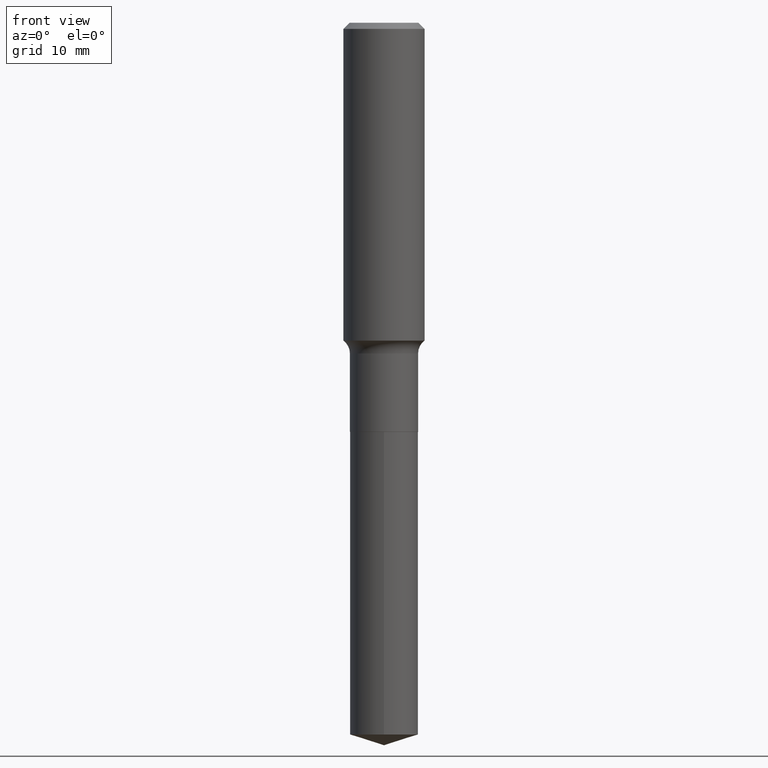
[diagram: clean part render]
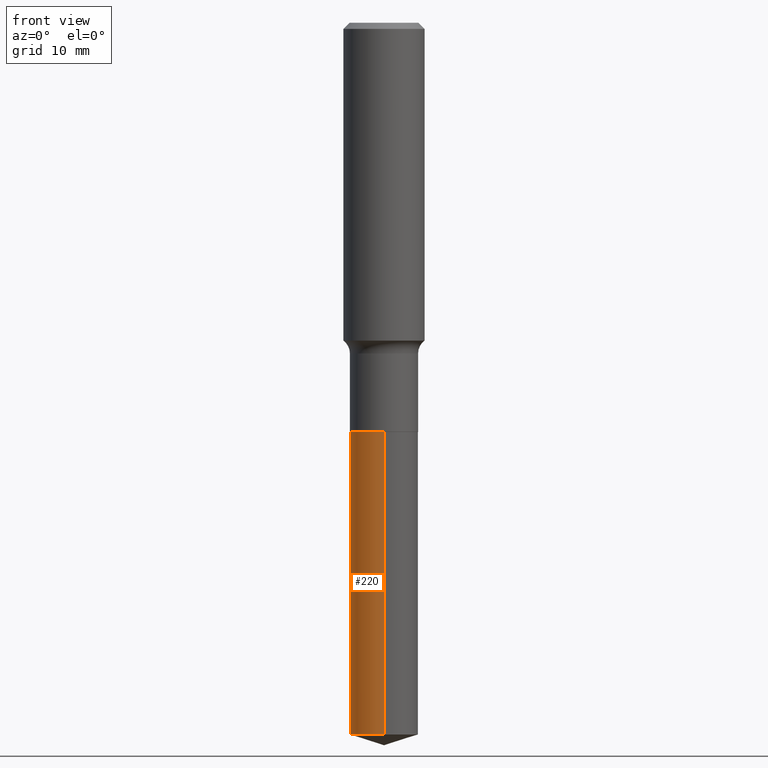
[diagram: same view with one face highlighted and labeled with its STEP entity id]
A machine part, front view. The second image highlights one B-rep face of the part: STEP entity #220.
In plain terms, the highlighted cylindrical surface (edge-blend (fillet) strip) has radius 4.1999 mm, axis along (-0, 0, 1).
Its self-contained STEP definition (entity closure, byte-faithful):
#3 = AXIS2_PLACEMENT_3D ( 'NONE', #464, #320, #470 ) ;
#9 = VECTOR ( 'NONE', #331, 39.37007874015748143 ) ;
#32 = CARTESIAN_POINT ( 'NONE',  ( -1.154632878755375361E-15, -0.1653500000000069081, -1.984199999999999076 ) ) ;
#65 = DIRECTION ( 'NONE',  ( -2.445155252839855977E-29, 3.491930365079935530E-15, 1.000000000000000000 ) ) ;
#66 = LINE ( 'NONE', #32, #237 ) ;
#70 = DIRECTION ( 'NONE',  ( -2.445155252839855977E-29, 3.491930365079935136E-15, 1.000000000000000000 ) ) ;
#76 = CARTESIAN_POINT ( 'NONE',  ( 4.852299205232546721E-29, -6.927797272532567708E-15, -1.984199999999999520 ) ) ;
#93 = EDGE_CURVE ( 'NONE', #129, #290, #172, .T. ) ;
#97 = CIRCLE ( 'NONE', #3, 0.1653499999999999970 ) ;
#119 = DIRECTION ( 'NONE',  ( -6.982962677686265133E-15, -1.000000000000000000, 3.304321734096478263E-15 ) ) ;
#129 = VERTEX_POINT ( 'NONE', #436 ) ;
#152 = DIRECTION ( 'NONE',  ( -6.982962677686265133E-15, -1.000000000000000000, 3.304321734096478263E-15 ) ) ;
#172 = CIRCLE ( 'NONE', #187, 0.1653499999999999970 ) ;
#178 = ORIENTED_EDGE ( 'NONE', *, *, #238, .T. ) ;
#179 = ORIENTED_EDGE ( 'NONE', *, *, #397, .F. ) ;
#187 = AXIS2_PLACEMENT_3D ( 'NONE', #76, #65, #152 ) ;
#200 = ORIENTED_EDGE ( 'NONE', *, *, #93, .F. ) ;
#220 = ADVANCED_FACE ( 'NONE', ( #272 ), #458, .T. ) ;
#223 = CARTESIAN_POINT ( 'NONE',  ( 1.174882413579409452E-15, 0.1653499999999878955, -3.451765345258860584 ) ) ;
#224 = LINE ( 'NONE', #435, #9 ) ;
#237 = VECTOR ( 'NONE', #70, 39.37007874015748143 ) ;
#238 = EDGE_CURVE ( 'NONE', #373, #282, #97, .T. ) ;
#268 = CARTESIAN_POINT ( 'NONE',  ( 4.852299205232546721E-29, -6.927797272532567708E-15, -1.984199999999999520 ) ) ;
#272 = FACE_OUTER_BOUND ( 'NONE', #466, .T. ) ;
#282 = VERTEX_POINT ( 'NONE', #372 ) ;
#290 = VERTEX_POINT ( 'NONE', #337 ) ;
#320 = DIRECTION ( 'NONE',  ( -2.445155252839855977E-29, 3.491930365079935530E-15, 1.000000000000000000 ) ) ;
#331 = DIRECTION ( 'NONE',  ( -2.445155252839855977E-29, 3.491930365079935136E-15, 1.000000000000000000 ) ) ;
#337 = CARTESIAN_POINT ( 'NONE',  ( -1.154632878755375361E-15, -0.1653500000000069081, -1.984199999999999076 ) ) ;
#372 = CARTESIAN_POINT ( 'NONE',  ( -1.154632878755339270E-15, -0.1653500000000120151, -3.451765345258859696 ) ) ;
#373 = VERTEX_POINT ( 'NONE', #223 ) ;
#397 = EDGE_CURVE ( 'NONE', #373, #129, #224, .T. ) ;
#406 = DIRECTION ( 'NONE',  ( -2.445155252839855977E-29, 3.491930365079935530E-15, 1.000000000000000000 ) ) ;
#435 = CARTESIAN_POINT ( 'NONE',  ( 1.174882413579373756E-15, 0.1653499999999930581, -1.984200000000000186 ) ) ;
#436 = CARTESIAN_POINT ( 'NONE',  ( 1.174882413579410044E-15, 0.1653499999999930581, -1.984200000000000186 ) ) ;
#452 = AXIS2_PLACEMENT_3D ( 'NONE', #268, #406, #119 ) ;
#456 = EDGE_CURVE ( 'NONE', #282, #290, #66, .T. ) ;
#458 = CYLINDRICAL_SURFACE ( 'NONE', #452, 0.1653499999999999970 ) ;
#463 = ORIENTED_EDGE ( 'NONE', *, *, #456, .T. ) ;
#464 = CARTESIAN_POINT ( 'NONE',  ( 8.440724318077987590E-29, -1.205243326438100244E-14, -3.451765345258860140 ) ) ;
#466 = EDGE_LOOP ( 'NONE', ( #179, #178, #463, #200 ) ) ;
#470 = DIRECTION ( 'NONE',  ( -6.982962677686265133E-15, -1.000000000000000000, 3.304321734096478263E-15 ) ) ;